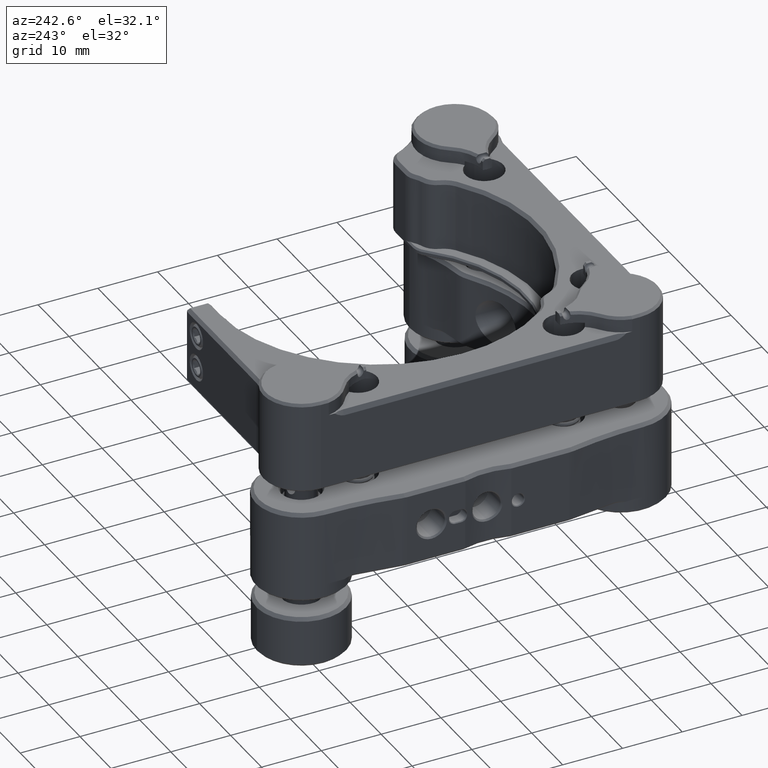
[diagram: clean part render]
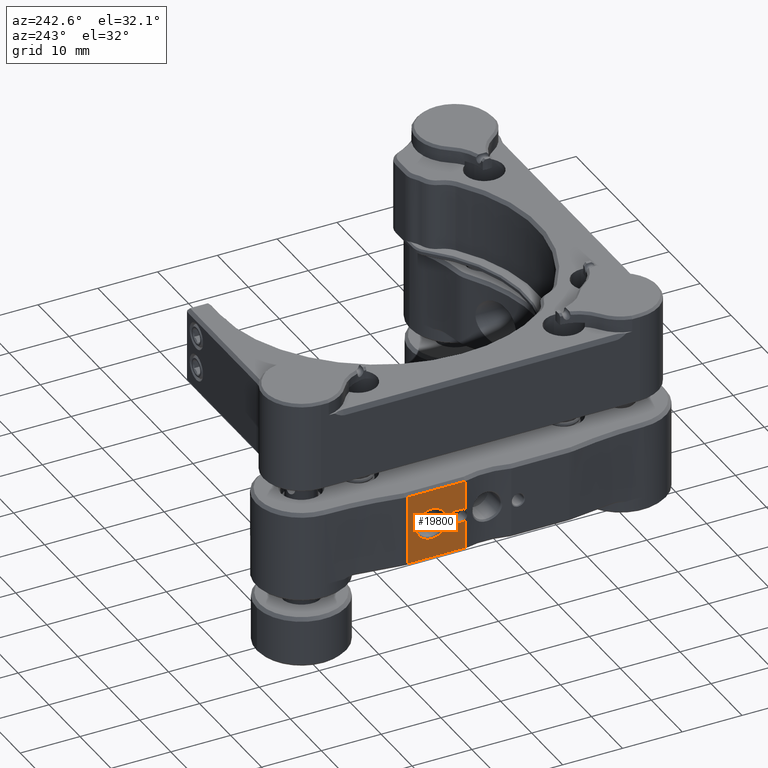
[diagram: same view with one face highlighted and labeled with its STEP entity id]
A machine part, auxiliary view. The second image highlights one B-rep face of the part: STEP entity #19800.
In plain terms, the highlighted planar face has unit normal (1, 0, 0).
Its self-contained STEP definition (entity closure, byte-faithful):
#87 = CARTESIAN_POINT ( 'NONE',  ( 29.41474904390709710, 5.069246495063794988, 57.13447705214370842 ) ) ;
#137 = VERTEX_POINT ( 'NONE', #9048 ) ;
#358 = DIRECTION ( 'NONE',  ( 0.000000000000000000, 0.000000000000000000, -1.000000000000000000 ) ) ;
#445 = B_SPLINE_CURVE_WITH_KNOTS ( 'NONE', 3,
 ( #87, #3927, #1862, #12833, #21722, #2005, #26532 ),
 .UNSPECIFIED., .F., .F.,
 ( 4, 3, 4 ),
 ( 0.000000000000000000, 9.602245649497746251E-05, 0.0001924897044204255069 ),
 .UNSPECIFIED. ) ;
#448 = CARTESIAN_POINT ( 'NONE',  ( 29.22288706125793567, 5.069246495063794988, 60.18502420018479171 ) ) ;
#1419 = VECTOR ( 'NONE', #24412, 1000.000000000000000 ) ;
#1862 = CARTESIAN_POINT ( 'NONE',  ( 29.35070603935488975, 5.069246495063809199, 57.13346090038124458 ) ) ;
#2005 = CARTESIAN_POINT ( 'NONE',  ( 29.25470586569447562, 5.069246495063891800, 57.12520463283962613 ) ) ;
#2021 = EDGE_CURVE ( 'NONE', #6629, #14970, #24693, .T. ) ;
#2231 = LINE ( 'NONE', #7059, #1419 ) ;
#2376 = VERTEX_POINT ( 'NONE', #24765 ) ;
#2536 = CARTESIAN_POINT ( 'NONE',  ( 34.87656882689397975, 5.069246495063794988, 53.89852420018487322 ) ) ;
#2651 = DIRECTION ( 'NONE',  ( 0.000000000000000000, 1.000000000000000000, 0.000000000000000000 ) ) ;
#2680 = LINE ( 'NONE', #22825, #21559 ) ;
#2993 = VERTEX_POINT ( 'NONE', #7644 ) ;
#3086 = CARTESIAN_POINT ( 'NONE',  ( 29.22288706125793567, 5.069246495063794988, 50.36328579289538965 ) ) ;
#3175 = CARTESIAN_POINT ( 'NONE',  ( 25.37656882689407567, 5.069246495063794988, 57.13447705214370131 ) ) ;
#3872 = VERTEX_POINT ( 'NONE', #13881 ) ;
#3927 = CARTESIAN_POINT ( 'NONE',  ( 29.38274281900654472, 5.069246495063794988, 57.13419298253793954 ) ) ;
#4505 = DIRECTION ( 'NONE',  ( 0.000000000000000000, 0.000000000000000000, 1.000000000000000000 ) ) ;
#4591 = DIRECTION ( 'NONE',  ( -0.000000000000000000, -0.000000000000000000, -1.000000000000000000 ) ) ;
#4794 = CARTESIAN_POINT ( 'NONE',  ( 34.87656882689397975, 5.069246495063794988, 48.69152420018471616 ) ) ;
#4948 = DIRECTION ( 'NONE',  ( -1.000000000000000000, 0.000000000000000000, -2.931589839520833663E-15 ) ) ;
#5101 = EDGE_CURVE ( 'NONE', #137, #6629, #10988, .T. ) ;
#5156 = DIRECTION ( 'NONE',  ( 0.000000000000000000, 0.000000000000000000, 1.000000000000000000 ) ) ;
#5447 = EDGE_CURVE ( 'NONE', #7708, #19478, #25704, .T. ) ;
#5924 = AXIS2_PLACEMENT_3D ( 'NONE', #26838, #20275, #4505 ) ;
#6040 = VERTEX_POINT ( 'NONE', #16310 ) ;
#6378 = CIRCLE ( 'NONE', #5924, 2.603500000000078085 ) ;
#6412 = AXIS2_PLACEMENT_3D ( 'NONE', #20249, #7387, #358 ) ;
#6517 = VERTEX_POINT ( 'NONE', #21835 ) ;
#6629 = VERTEX_POINT ( 'NONE', #24882 ) ;
#6863 = CIRCLE ( 'NONE', #6412, 1.142999999999998240 ) ;
#7059 = CARTESIAN_POINT ( 'NONE',  ( 38.87892856753084203, 5.069246495063794988, 57.64502420018478546 ) ) ;
#7206 = ORIENTED_EDGE ( 'NONE', *, *, #18156, .T. ) ;
#7228 = EDGE_CURVE ( 'NONE', #8424, #26884, #22802, .T. ) ;
#7387 = DIRECTION ( 'NONE',  ( -0.000000000000000000, -1.000000000000000000, -0.000000000000000000 ) ) ;
#7644 = CARTESIAN_POINT ( 'NONE',  ( 29.41474904390709710, 5.069246495063794988, 57.13447705214370842 ) ) ;
#7708 = VERTEX_POINT ( 'NONE', #4794 ) ;
#7872 = AXIS2_PLACEMENT_3D ( 'NONE', #28174, #12532, #8022 ) ;
#8022 = DIRECTION ( 'NONE',  ( 0.000000000000000000, 0.000000000000000000, -1.000000000000000000 ) ) ;
#8424 = VERTEX_POINT ( 'NONE', #3086 ) ;
#9048 = CARTESIAN_POINT ( 'NONE',  ( 29.88493882689397907, 5.069246495063794988, 50.15202420018479046 ) ) ;
#9242 = CARTESIAN_POINT ( 'NONE',  ( 34.87656882689397975, 5.069246495063794988, 51.29502420018479114 ) ) ;
#9314 = DIRECTION ( 'NONE',  ( -0.000000000000000000, -1.000000000000000000, -0.000000000000000000 ) ) ;
#9509 = VECTOR ( 'NONE', #22513, 1000.000000000000000 ) ;
#9560 = EDGE_CURVE ( 'NONE', #19478, #7708, #6378, .T. ) ;
#10312 = ORIENTED_EDGE ( 'NONE', *, *, #19422, .T. ) ;
#10651 = EDGE_LOOP ( 'NONE', ( #18169, #13352 ) ) ;
#10988 = LINE ( 'NONE', #24121, #13622 ) ;
#11157 = EDGE_CURVE ( 'NONE', #2993, #3872, #445, .T. ) ;
#11525 = LINE ( 'NONE', #3175, #19538 ) ;
#11660 = ORIENTED_EDGE ( 'NONE', *, *, #26867, .T. ) ;
#11799 = CARTESIAN_POINT ( 'NONE',  ( 30.87579882689398048, 5.069246495063794988, 51.29502420018479114 ) ) ;
#11922 = DIRECTION ( 'NONE',  ( 1.000000000000000000, -0.000000000000000000, -0.000000000000000000 ) ) ;
#12134 = AXIS2_PLACEMENT_3D ( 'NONE', #11799, #9314, #22881 ) ;
#12532 = DIRECTION ( 'NONE',  ( -0.000000000000000000, -1.000000000000000000, -0.000000000000000000 ) ) ;
#12673 = VECTOR ( 'NONE', #22066, 1000.000000000000000 ) ;
#12833 = CARTESIAN_POINT ( 'NONE',  ( 29.31878621386709582, 5.069246495063809199, 57.13109365118556582 ) ) ;
#12887 = ORIENTED_EDGE ( 'NONE', *, *, #7228, .T. ) ;
#13352 = ORIENTED_EDGE ( 'NONE', *, *, #9560, .T. ) ;
#13418 = ORIENTED_EDGE ( 'NONE', *, *, #26704, .F. ) ;
#13609 = LINE ( 'NONE', #19761, #12673 ) ;
#13622 = VECTOR ( 'NONE', #15522, 1000.000000000000000 ) ;
#13881 = CARTESIAN_POINT ( 'NONE',  ( 29.22288706125793567, 5.069246495063794988, 57.12053569113693641 ) ) ;
#14191 = CARTESIAN_POINT ( 'NONE',  ( 38.87892856753084203, 5.069246495063794988, 57.13447705214373684 ) ) ;
#14272 = LINE ( 'NONE', #27120, #18618 ) ;
#14322 = ORIENTED_EDGE ( 'NONE', *, *, #21508, .T. ) ;
#14493 = EDGE_LOOP ( 'NONE', ( #14322, #18603, #16047, #10312, #28598, #11660, #15531, #27984, #13418, #12887, #7206 ) ) ;
#14970 = VERTEX_POINT ( 'NONE', #25027 ) ;
#15522 = DIRECTION ( 'NONE',  ( 1.000000000000000000, -0.000000000000000000, -0.000000000000000000 ) ) ;
#15531 = ORIENTED_EDGE ( 'NONE', *, *, #2021, .F. ) ;
#16047 = ORIENTED_EDGE ( 'NONE', *, *, #11157, .T. ) ;
#16073 = DIRECTION ( 'NONE',  ( 0.000000000000000000, -0.000000000000000000, 1.000000000000000000 ) ) ;
#16310 = CARTESIAN_POINT ( 'NONE',  ( 29.88493882689397907, 5.069246495063794988, 52.43802420018479182 ) ) ;
#17999 = CARTESIAN_POINT ( 'NONE',  ( 25.37656882689406501, 5.069246495063794988, 60.18502420018479171 ) ) ;
#18156 = EDGE_CURVE ( 'NONE', #26884, #2376, #13609, .T. ) ;
#18169 = ORIENTED_EDGE ( 'NONE', *, *, #5447, .T. ) ;
#18435 = FACE_OUTER_BOUND ( 'NONE', #14493, .T. ) ;
#18603 = ORIENTED_EDGE ( 'NONE', *, *, #26186, .T. ) ;
#18618 = VECTOR ( 'NONE', #11922, 1000.000000000000000 ) ;
#19130 = AXIS2_PLACEMENT_3D ( 'NONE', #17999, #2651, #16073 ) ;
#19422 = EDGE_CURVE ( 'NONE', #3872, #6517, #2680, .T. ) ;
#19478 = VERTEX_POINT ( 'NONE', #2536 ) ;
#19538 = VECTOR ( 'NONE', #4948, 1000.000000000000000 ) ;
#19761 = CARTESIAN_POINT ( 'NONE',  ( 25.37656882689406501, 5.069246495063794988, 45.45302420018479950 ) ) ;
#19800 = ADVANCED_FACE ( 'NONE', ( #20180, #18435 ), #22351, .F. ) ;
#20180 = FACE_BOUND ( 'NONE', #10651, .T. ) ;
#20249 = CARTESIAN_POINT ( 'NONE',  ( 29.88493882689397907, 5.069246495063794988, 51.29502420018479114 ) ) ;
#20275 = DIRECTION ( 'NONE',  ( 0.000000000000000000, 1.000000000000000000, 0.000000000000000000 ) ) ;
#20684 = CARTESIAN_POINT ( 'NONE',  ( 29.22288706125793567, 5.069246495063794988, 45.45302420018480660 ) ) ;
#21359 = CIRCLE ( 'NONE', #7872, 1.142999999999998240 ) ;
#21508 = EDGE_CURVE ( 'NONE', #2376, #28113, #2231, .T. ) ;
#21559 = VECTOR ( 'NONE', #4591, 1000.000000000000000 ) ;
#21722 = CARTESIAN_POINT ( 'NONE',  ( 29.28671476086748626, 5.069246495063809199, 57.12871515693763058 ) ) ;
#21835 = CARTESIAN_POINT ( 'NONE',  ( 29.22288706125793567, 5.069246495063794988, 52.22676260747419974 ) ) ;
#22066 = DIRECTION ( 'NONE',  ( 1.000000000000000000, 0.000000000000000000, 0.000000000000000000 ) ) ;
#22351 = PLANE ( 'NONE',  #19130 ) ;
#22513 = DIRECTION ( 'NONE',  ( -0.000000000000000000, -0.000000000000000000, -1.000000000000000000 ) ) ;
#22802 = LINE ( 'NONE', #448, #9509 ) ;
#22825 = CARTESIAN_POINT ( 'NONE',  ( 29.22288706125793567, 5.069246495063794988, 60.18502420018479171 ) ) ;
#22881 = DIRECTION ( 'NONE',  ( 0.000000000000000000, 0.000000000000000000, -1.000000000000000000 ) ) ;
#23362 = AXIS2_PLACEMENT_3D ( 'NONE', #9242, #24544, #5156 ) ;
#24121 = CARTESIAN_POINT ( 'NONE',  ( 29.88493882689397907, 5.069246495063794988, 50.15202420018478335 ) ) ;
#24412 = DIRECTION ( 'NONE',  ( 0.000000000000000000, 0.000000000000000000, 1.000000000000000000 ) ) ;
#24543 = EDGE_CURVE ( 'NONE', #6040, #6517, #6863, .T. ) ;
#24544 = DIRECTION ( 'NONE',  ( 0.000000000000000000, 1.000000000000000000, 0.000000000000000000 ) ) ;
#24693 = CIRCLE ( 'NONE', #12134, 1.142999999999998240 ) ;
#24765 = CARTESIAN_POINT ( 'NONE',  ( 38.87892856753084203, 5.069246495063794988, 45.45302420018479950 ) ) ;
#24882 = CARTESIAN_POINT ( 'NONE',  ( 30.87579882689398048, 5.069246495063794988, 50.15202420018478335 ) ) ;
#25027 = CARTESIAN_POINT ( 'NONE',  ( 30.87579882689398048, 5.069246495063794988, 52.43802420018479182 ) ) ;
#25704 = CIRCLE ( 'NONE', #23362, 2.603500000000078085 ) ;
#26186 = EDGE_CURVE ( 'NONE', #28113, #2993, #11525, .T. ) ;
#26532 = CARTESIAN_POINT ( 'NONE',  ( 29.22288706125793567, 5.069246495063794988, 57.12053569113693641 ) ) ;
#26704 = EDGE_CURVE ( 'NONE', #8424, #137, #21359, .T. ) ;
#26838 = CARTESIAN_POINT ( 'NONE',  ( 34.87656882689397975, 5.069246495063794988, 51.29502420018479114 ) ) ;
#26867 = EDGE_CURVE ( 'NONE', #6040, #14970, #14272, .T. ) ;
#26884 = VERTEX_POINT ( 'NONE', #20684 ) ;
#27120 = CARTESIAN_POINT ( 'NONE',  ( 29.88493882689397907, 5.069246495063794988, 52.43802420018479182 ) ) ;
#27984 = ORIENTED_EDGE ( 'NONE', *, *, #5101, .F. ) ;
#28113 = VERTEX_POINT ( 'NONE', #14191 ) ;
#28174 = CARTESIAN_POINT ( 'NONE',  ( 29.88493882689397907, 5.069246495063794988, 51.29502420018479114 ) ) ;
#28598 = ORIENTED_EDGE ( 'NONE', *, *, #24543, .F. ) ;